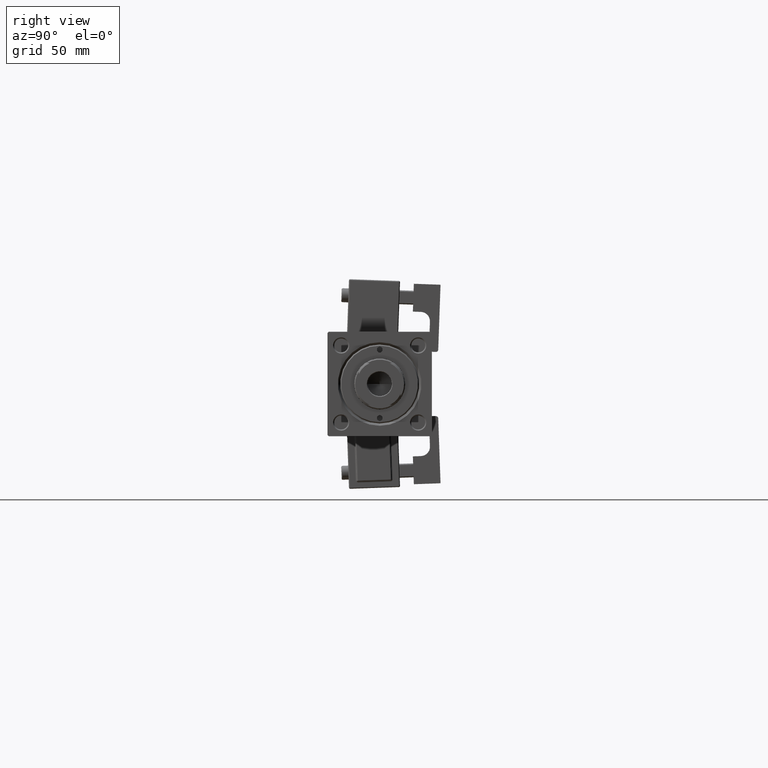
[diagram: clean part render]
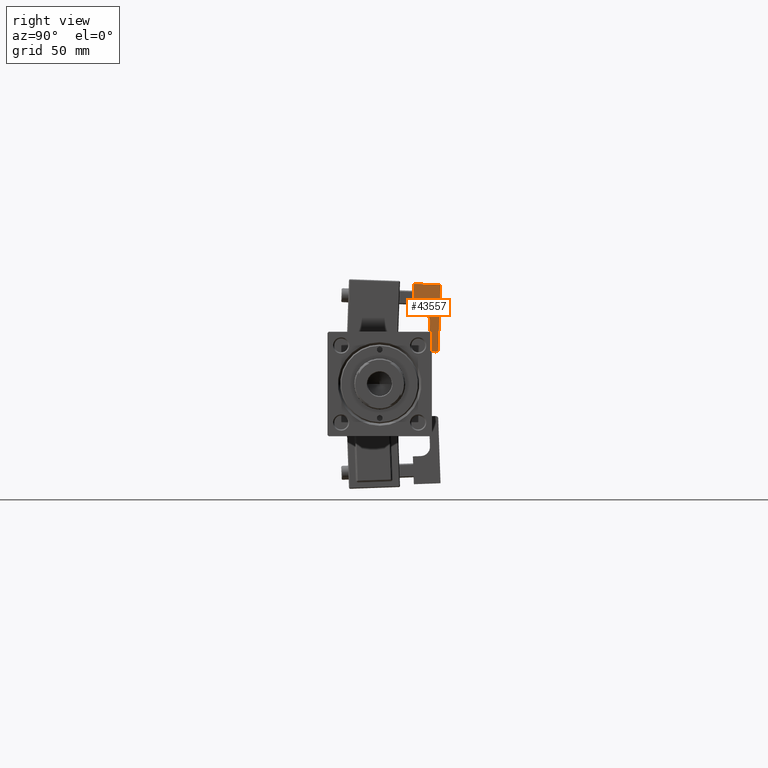
[diagram: same view with one face highlighted and labeled with its STEP entity id]
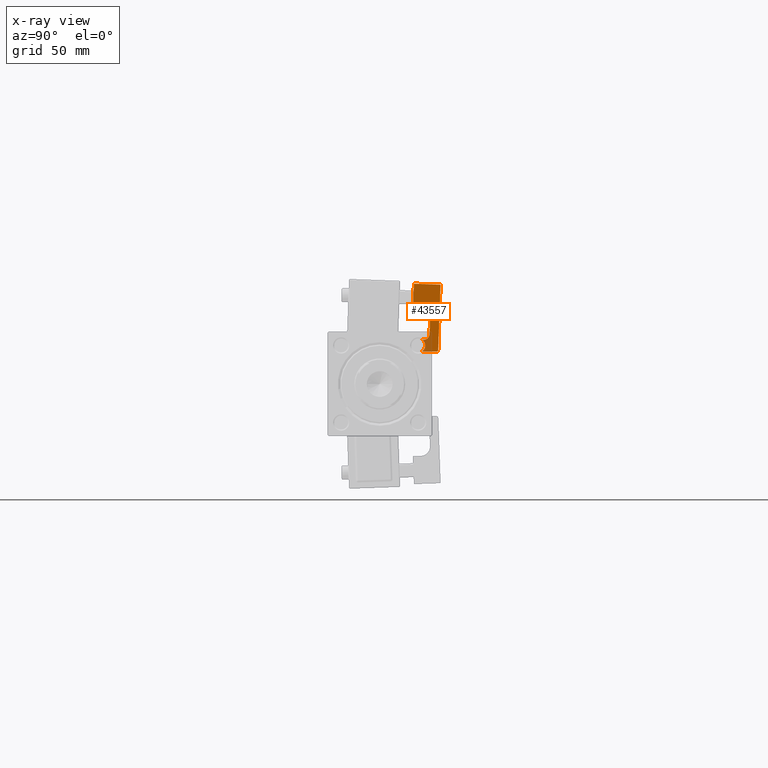
[diagram: x-ray of the same camera — body ghosted, the highlighted face saturated]
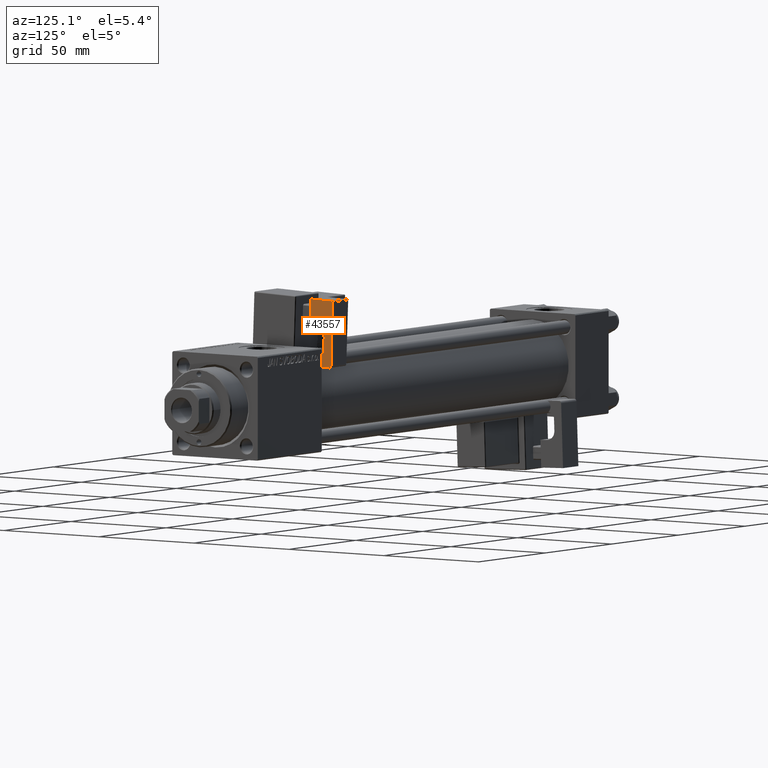
[diagram: same view with one face highlighted and labeled with its STEP entity id]
A machine part, right view. The second image highlights one B-rep face of the part: STEP entity #43557.
The next image is the same camera in x-ray: the body ghosted, the highlighted face saturated — about 10% of this face is hidden behind the body in this view.
A second angle (auxiliary view) of the same face is appended — the face is thin or edge-on in the first view.
In plain terms, the highlighted planar face has unit normal (-1, 0, -0).
Its self-contained STEP definition (entity closure, byte-faithful):
#277 = EDGE_CURVE ( 'NONE', #5649, #43639, #35515, .T. ) ;
#559 = EDGE_CURVE ( 'NONE', #20358, #37069, #48224, .T. ) ;
#560 = VECTOR ( 'NONE', #26291, 1000.000000000000000 ) ;
#773 = CARTESIAN_POINT ( 'NONE',  ( -5.750000000000000000, -1.249999999999999334, 29.00000000000000000 ) ) ;
#1670 = CARTESIAN_POINT ( 'NONE',  ( -5.750000000000000000, -0.7500000000000007772, 24.00000000000000000 ) ) ;
#1681 = DIRECTION ( 'NONE',  ( 1.000000000000000000, 1.508455196501571183E-16, -0.000000000000000000 ) ) ;
#1869 = CARTESIAN_POINT ( 'NONE',  ( -5.750000000000000000, 4.750000000000000888, 29.00000000000000000 ) ) ;
#2703 = LINE ( 'NONE', #39674, #29781 ) ;
#3006 = CARTESIAN_POINT ( 'NONE',  ( -5.750000000000000000, 1.749999999999999778, 26.50000000000000355 ) ) ;
#3138 = ORIENTED_EDGE ( 'NONE', *, *, #3800, .F. ) ;
#3800 = EDGE_CURVE ( 'NONE', #36583, #25803, #13219, .T. ) ;
#4522 = CARTESIAN_POINT ( 'NONE',  ( -5.749999999999998224, -5.750000000000000000, 12.00000000000000000 ) ) ;
#4550 = EDGE_CURVE ( 'NONE', #29435, #29595, #49739, .T. ) ;
#5131 = DIRECTION ( 'NONE',  ( -1.508455196501571183E-16, 1.000000000000000000, 0.000000000000000000 ) ) ;
#5649 = VERTEX_POINT ( 'NONE', #1869 ) ;
#6962 = CARTESIAN_POINT ( 'NONE',  ( -5.749999999999998224, -0.7500000000000007772, 21.50000000000000000 ) ) ;
#8775 = ORIENTED_EDGE ( 'NONE', *, *, #277, .F. ) ;
#8933 = CARTESIAN_POINT ( 'NONE',  ( -5.750000000000000000, 5.750000000000000000, 0.000000000000000000 ) ) ;
#9212 = DIRECTION ( 'NONE',  ( 1.000000000000000000, 1.508455196501571183E-16, -0.000000000000000000 ) ) ;
#10698 = CARTESIAN_POINT ( 'NONE',  ( -5.750000000000000000, -1.249999999999999334, 24.00000000000000000 ) ) ;
#11207 = ORIENTED_EDGE ( 'NONE', *, *, #24590, .T. ) ;
#12898 = ORIENTED_EDGE ( 'NONE', *, *, #559, .T. ) ;
#13219 = LINE ( 'NONE', #4522, #43136 ) ;
#14160 = EDGE_CURVE ( 'NONE', #29435, #38679, #26031, .T. ) ;
#14502 = ORIENTED_EDGE ( 'NONE', *, *, #36766, .F. ) ;
#14650 = ORIENTED_EDGE ( 'NONE', *, *, #37666, .T. ) ;
#14952 = AXIS2_PLACEMENT_3D ( 'NONE', #25889, #37835, #25610 ) ;
#15558 = LINE ( 'NONE', #15816, #46718 ) ;
#15686 = CARTESIAN_POINT ( 'NONE',  ( -5.749999999999998224, -5.750000000000000000, 0.000000000000000000 ) ) ;
#15816 = CARTESIAN_POINT ( 'NONE',  ( -5.750000000000000000, 5.750000000000000000, 12.00000000000000000 ) ) ;
#16612 = DIRECTION ( 'NONE',  ( 0.000000000000000000, 1.000000000000000000, 0.000000000000000000 ) ) ;
#19628 = CARTESIAN_POINT ( 'NONE',  ( -5.749999999999998224, -5.750000000000000000, 12.00000000000000000 ) ) ;
#19766 = ORIENTED_EDGE ( 'NONE', *, *, #49201, .F. ) ;
#19858 = VERTEX_POINT ( 'NONE', #30883 ) ;
#19954 = AXIS2_PLACEMENT_3D ( 'NONE', #6962, #35778, #52363 ) ;
#20358 = VERTEX_POINT ( 'NONE', #42399 ) ;
#20425 = CARTESIAN_POINT ( 'NONE',  ( -5.750000000000000000, 4.750000000000000000, 28.00000000000000000 ) ) ;
#21952 = CARTESIAN_POINT ( 'NONE',  ( -5.750000000000000000, 1.749999999999997558, 16.00000000000000000 ) ) ;
#22790 = CIRCLE ( 'NONE', #14952, 4.000000000000000000 ) ;
#23321 = EDGE_CURVE ( 'NONE', #50489, #29595, #22790, .T. ) ;
#23366 = DIRECTION ( 'NONE',  ( 1.508455196501571429E-16, -1.000000000000000000, 0.000000000000000000 ) ) ;
#23474 = DIRECTION ( 'NONE',  ( 0.000000000000000000, 1.000000000000000000, 0.000000000000000000 ) ) ;
#24590 = EDGE_CURVE ( 'NONE', #42521, #25803, #2703, .T. ) ;
#24645 = CIRCLE ( 'NONE', #44638, 1.000000000000000000 ) ;
#25610 = DIRECTION ( 'NONE',  ( -2.168404344971008868E-16, 1.000000000000000000, 0.000000000000000000 ) ) ;
#25803 = VERTEX_POINT ( 'NONE', #15686 ) ;
#25889 = CARTESIAN_POINT ( 'NONE',  ( -5.749999999999999112, -2.250000000000002665, 16.00000000000000000 ) ) ;
#26031 = CIRCLE ( 'NONE', #19954, 2.500000000000000000 ) ;
#26291 = DIRECTION ( 'NONE',  ( -0.000000000000000000, -0.000000000000000000, -1.000000000000000000 ) ) ;
#27145 = CARTESIAN_POINT ( 'NONE',  ( -5.750000000000000000, -1.249999999999999334, 29.00000000000000000 ) ) ;
#28252 = CARTESIAN_POINT ( 'NONE',  ( -5.750000000000000000, 1.749999999999999112, 21.50000000000000000 ) ) ;
#28278 = LINE ( 'NONE', #3006, #53280 ) ;
#29435 = VERTEX_POINT ( 'NONE', #28252 ) ;
#29595 = VERTEX_POINT ( 'NONE', #21952 ) ;
#29781 = VECTOR ( 'NONE', #23366, 1000.000000000000000 ) ;
#29834 = LINE ( 'NONE', #30098, #560 ) ;
#30098 = CARTESIAN_POINT ( 'NONE',  ( -5.750000000000000000, 5.750000000000000000, 12.00000000000000000 ) ) ;
#30883 = CARTESIAN_POINT ( 'NONE',  ( -5.750000000000000000, 5.750000000000000000, 28.00000000000000000 ) ) ;
#31031 = CARTESIAN_POINT ( 'NONE',  ( -5.749999999999998224, -2.936149805543990521, 26.50000000000000000 ) ) ;
#31751 = AXIS2_PLACEMENT_3D ( 'NONE', #31031, #1681, #51686 ) ;
#31947 = VECTOR ( 'NONE', #23474, 1000.000000000000000 ) ;
#32552 = ORIENTED_EDGE ( 'NONE', *, *, #41085, .F. ) ;
#32612 = VERTEX_POINT ( 'NONE', #47779 ) ;
#32707 = VECTOR ( 'NONE', #36976, 1000.000000000000000 ) ;
#33873 = CARTESIAN_POINT ( 'NONE',  ( -5.750000000000000000, -1.015596606550550618, 28.80466383879212700 ) ) ;
#35193 = AXIS2_PLACEMENT_3D ( 'NONE', #45916, #9212, #5131 ) ;
#35331 = ORIENTED_EDGE ( 'NONE', *, *, #23321, .T. ) ;
#35515 = LINE ( 'NONE', #51817, #44735 ) ;
#35778 = DIRECTION ( 'NONE',  ( 1.000000000000000000, 1.508455196501571183E-16, -0.000000000000000000 ) ) ;
#36583 = VERTEX_POINT ( 'NONE', #19628 ) ;
#36766 = EDGE_CURVE ( 'NONE', #43639, #37069, #46719, .T. ) ;
#36976 = DIRECTION ( 'NONE',  ( 0.000000000000000000, -3.071906155375595568E-16, -1.000000000000000000 ) ) ;
#37014 = DIRECTION ( 'NONE',  ( 0.000000000000000000, 0.7682212795973759611, -0.6401843996644797086 ) ) ;
#37069 = VERTEX_POINT ( 'NONE', #33873 ) ;
#37287 = DIRECTION ( 'NONE',  ( -1.000000000000000000, -1.508455196501571183E-16, 0.000000000000000000 ) ) ;
#37666 = EDGE_CURVE ( 'NONE', #5649, #19858, #24645, .T. ) ;
#37835 = DIRECTION ( 'NONE',  ( 1.000000000000000000, 1.508455196501571183E-16, -0.000000000000000000 ) ) ;
#38077 = ORIENTED_EDGE ( 'NONE', *, *, #4550, .F. ) ;
#38510 = DIRECTION ( 'NONE',  ( -0.000000000000000000, -0.000000000000000000, -1.000000000000000000 ) ) ;
#38679 = VERTEX_POINT ( 'NONE', #1670 ) ;
#39674 = CARTESIAN_POINT ( 'NONE',  ( -5.750000000000000000, 5.750000000000000000, 0.000000000000000000 ) ) ;
#40393 = DIRECTION ( 'NONE',  ( 0.000000000000000000, -1.000000000000000000, 0.000000000000000000 ) ) ;
#41085 = EDGE_CURVE ( 'NONE', #20358, #32612, #28278, .T. ) ;
#42382 = FACE_OUTER_BOUND ( 'NONE', #51742, .T. ) ;
#42399 = CARTESIAN_POINT ( 'NONE',  ( -5.750000000000000000, -1.015596606550550396, 24.19533616120787300 ) ) ;
#42521 = VERTEX_POINT ( 'NONE', #8933 ) ;
#42642 = PLANE ( 'NONE',  #35193 ) ;
#43136 = VECTOR ( 'NONE', #38510, 1000.000000000000000 ) ;
#43290 = ORIENTED_EDGE ( 'NONE', *, *, #52405, .F. ) ;
#43557 = ADVANCED_FACE ( 'NONE', ( #42382 ), #42642, .F. ) ;
#43639 = VERTEX_POINT ( 'NONE', #27145 ) ;
#43856 = LINE ( 'NONE', #10698, #31947 ) ;
#44620 = CARTESIAN_POINT ( 'NONE',  ( -5.749999999999999112, -2.250000000000003553, 12.00000000000000000 ) ) ;
#44638 = AXIS2_PLACEMENT_3D ( 'NONE', #20425, #37287, #16612 ) ;
#44735 = VECTOR ( 'NONE', #40393, 1000.000000000000000 ) ;
#44857 = DIRECTION ( 'NONE',  ( 0.000000000000000000, -0.7682212795973755171, -0.6401843996644802637 ) ) ;
#45916 = CARTESIAN_POINT ( 'NONE',  ( -5.750000000000000000, 5.750000000000000000, 12.00000000000000000 ) ) ;
#46196 = CARTESIAN_POINT ( 'NONE',  ( -5.750000000000000000, 1.750000000000000000, 24.00000000000000000 ) ) ;
#46719 = LINE ( 'NONE', #773, #50675 ) ;
#46718 = VECTOR ( 'NONE', #52529, 1000.000000000000000 ) ;
#46870 = EDGE_CURVE ( 'NONE', #19858, #42521, #29834, .T. ) ;
#47779 = CARTESIAN_POINT ( 'NONE',  ( -5.750000000000000000, -1.249999999999999334, 24.00000000000000000 ) ) ;
#48224 = CIRCLE ( 'NONE', #31751, 3.000000000000000000 ) ;
#49201 = EDGE_CURVE ( 'NONE', #32612, #38679, #43856, .T. ) ;
#49739 = LINE ( 'NONE', #46196, #32707 ) ;
#49919 = ORIENTED_EDGE ( 'NONE', *, *, #14160, .T. ) ;
#50489 = VERTEX_POINT ( 'NONE', #44620 ) ;
#50675 = VECTOR ( 'NONE', #37014, 1000.000000000000114 ) ;
#51686 = DIRECTION ( 'NONE',  ( -2.891205793294678326E-16, 1.000000000000000000, 0.000000000000000000 ) ) ;
#51742 = EDGE_LOOP ( 'NONE', ( #8775, #14650, #52890, #11207, #3138, #43290, #35331, #38077, #49919, #19766, #32552, #12898, #14502 ) ) ;
#51817 = CARTESIAN_POINT ( 'NONE',  ( -5.750000000000000000, 5.750000000000000000, 29.00000000000000000 ) ) ;
#52363 = DIRECTION ( 'NONE',  ( 0.000000000000000000, 1.000000000000000000, 0.000000000000000000 ) ) ;
#52405 = EDGE_CURVE ( 'NONE', #50489, #36583, #15558, .T. ) ;
#52529 = DIRECTION ( 'NONE',  ( 1.508455196501571429E-16, -1.000000000000000000, 0.000000000000000000 ) ) ;
#52890 = ORIENTED_EDGE ( 'NONE', *, *, #46870, .T. ) ;
#53280 = VECTOR ( 'NONE', #44857, 1000.000000000000114 ) ;